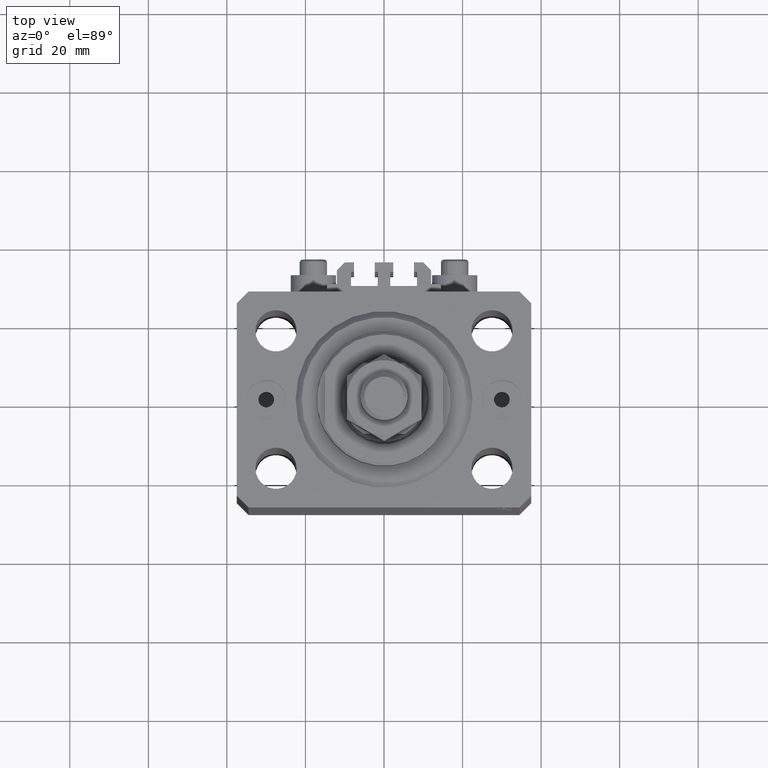
[diagram: clean part render]
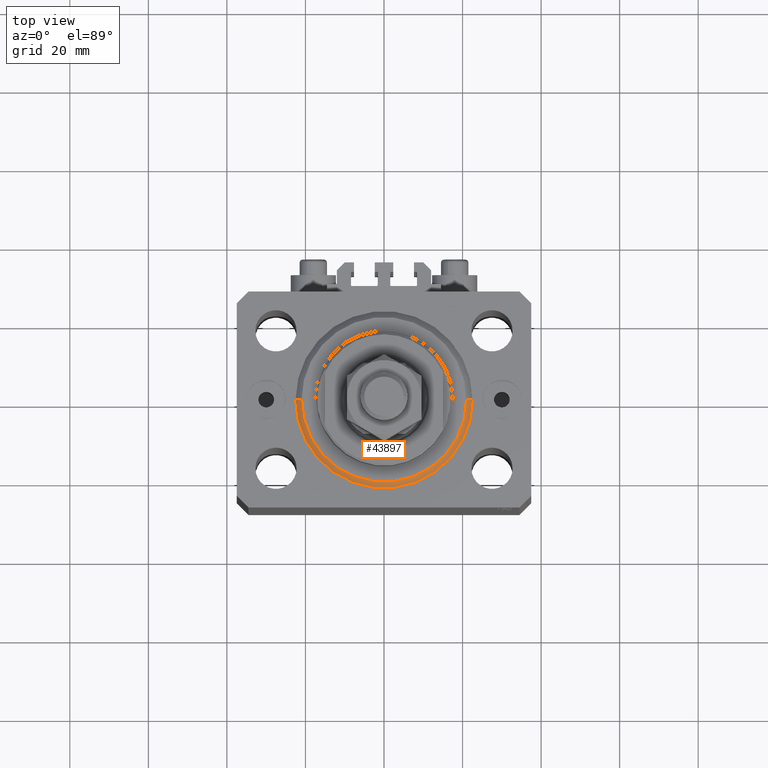
[diagram: same view with one face highlighted and labeled with its STEP entity id]
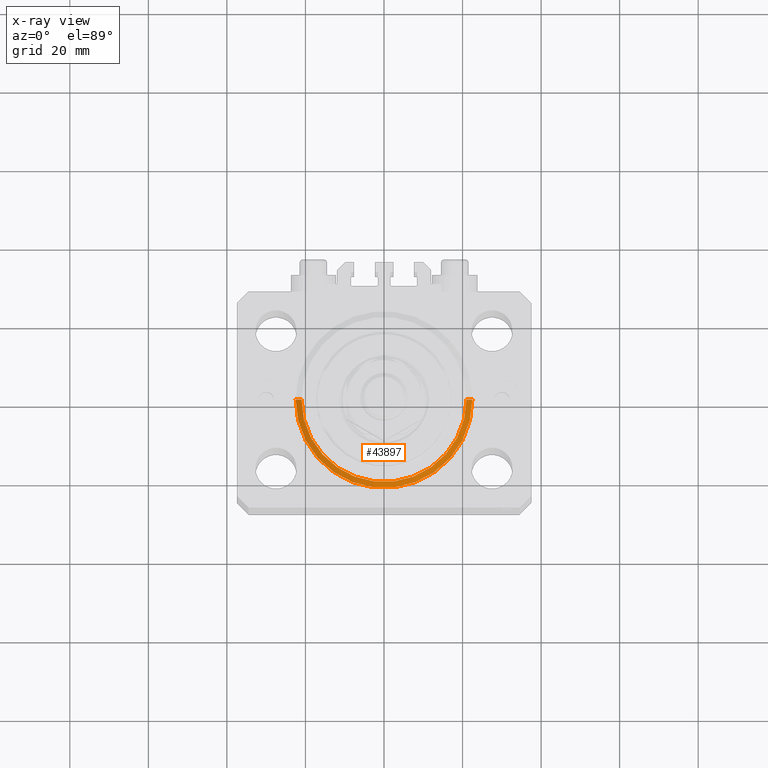
[diagram: x-ray of the same camera — body ghosted, the highlighted face saturated]
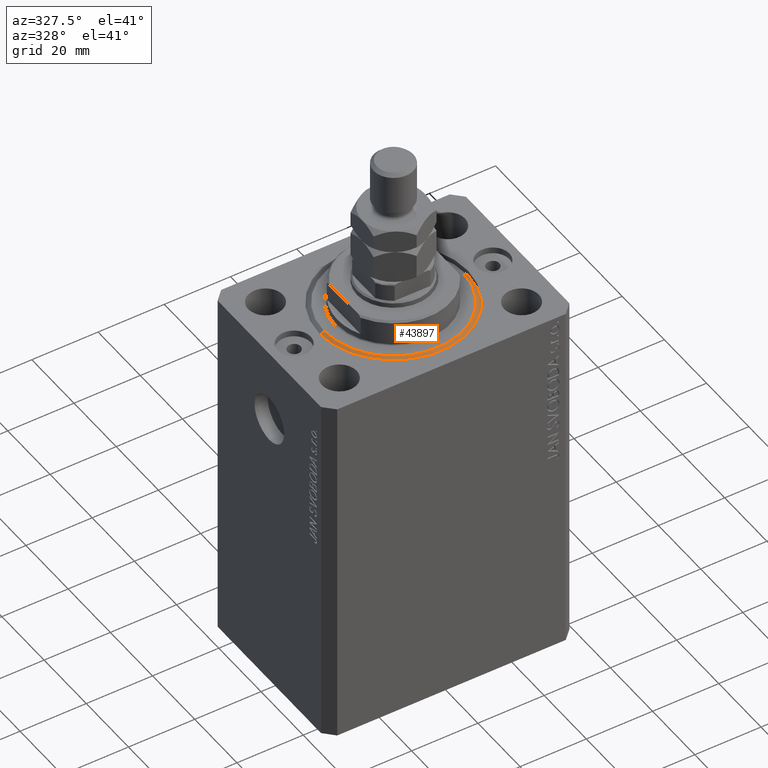
[diagram: same view with one face highlighted and labeled with its STEP entity id]
A machine part, top view. The second image highlights one B-rep face of the part: STEP entity #43897.
The next image is the same camera in x-ray: the body ghosted, the highlighted face saturated — about 0% of this face is hidden behind the body in this view.
A second angle (auxiliary view) of the same face is appended — the face is thin or edge-on in the first view.
In plain terms, the highlighted conical surface has half-angle 45 deg.
Its self-contained STEP definition (entity closure, byte-faithful):
#1937 = DIRECTION ( 'NONE',  ( -0.000000000000000000, -0.000000000000000000, 1.000000000000000000 ) ) ;
#2815 = VERTEX_POINT ( 'NONE', #14571 ) ;
#3433 = CIRCLE ( 'NONE', #30998, 20.99999999999998934 ) ;
#4503 = ORIENTED_EDGE ( 'NONE', *, *, #27206, .F. ) ;
#8793 = CARTESIAN_POINT ( 'NONE',  ( 0.000000000000000000, 0.000000000000000000, 0.000000000000000000 ) ) ;
#9700 = ORIENTED_EDGE ( 'NONE', *, *, #21957, .F. ) ;
#11425 = VERTEX_POINT ( 'NONE', #14311 ) ;
#11773 = ORIENTED_EDGE ( 'NONE', *, *, #43025, .T. ) ;
#14311 = CARTESIAN_POINT ( 'NONE',  ( -20.99999999999998934, 2.663606788145492628E-15, 0.000000000000000000 ) ) ;
#14571 = CARTESIAN_POINT ( 'NONE',  ( -22.50000000000000355, 0.000000000000000000, 1.500000000000001332 ) ) ;
#14725 = LINE ( 'NONE', #30249, #20201 ) ;
#15587 = AXIS2_PLACEMENT_3D ( 'NONE', #35724, #1937, #16280 ) ;
#16280 = DIRECTION ( 'NONE',  ( 1.000000000000000000, 0.000000000000000000, 0.000000000000000000 ) ) ;
#18718 = CIRCLE ( 'NONE', #15587, 22.50000000000000355 ) ;
#18904 = DIRECTION ( 'NONE',  ( -0.7071067811865500152, 8.659560562354963673E-17, 0.7071067811865451302 ) ) ;
#19820 = CONICAL_SURFACE ( 'NONE', #26128, 22.50000000000000355, 0.7853981633974517207 ) ;
#20201 = VECTOR ( 'NONE', #18904, 1000.000000000000114 ) ;
#20873 = DIRECTION ( 'NONE',  ( -0.000000000000000000, -0.000000000000000000, -1.000000000000000000 ) ) ;
#21957 = EDGE_CURVE ( 'NONE', #44079, #11425, #3433, .T. ) ;
#22095 = CARTESIAN_POINT ( 'NONE',  ( 0.000000000000000000, 0.000000000000000000, 1.500000000000001332 ) ) ;
#25796 = FACE_OUTER_BOUND ( 'NONE', #34299, .T. ) ;
#26128 = AXIS2_PLACEMENT_3D ( 'NONE', #22095, #40831, #37381 ) ;
#27206 = EDGE_CURVE ( 'NONE', #2815, #48632, #18718, .T. ) ;
#28648 = EDGE_CURVE ( 'NONE', #11425, #2815, #14725, .T. ) ;
#30249 = CARTESIAN_POINT ( 'NONE',  ( -22.50000000000000355, 2.755455298081545172E-15, 1.500000000000001332 ) ) ;
#30998 = AXIS2_PLACEMENT_3D ( 'NONE', #8793, #20873, #31485 ) ;
#31485 = DIRECTION ( 'NONE',  ( 1.000000000000000000, 0.000000000000000000, 0.000000000000000000 ) ) ;
#33493 = DIRECTION ( 'NONE',  ( 0.7071067811865500152, 0.000000000000000000, 0.7071067811865451302 ) ) ;
#34299 = EDGE_LOOP ( 'NONE', ( #42392, #9700, #11773, #4503 ) ) ;
#34745 = CARTESIAN_POINT ( 'NONE',  ( 22.50000000000000355, 2.755455298081545172E-15, 1.500000000000001332 ) ) ;
#35724 = CARTESIAN_POINT ( 'NONE',  ( 0.000000000000000000, 0.000000000000000000, 1.500000000000001332 ) ) ;
#37381 = DIRECTION ( 'NONE',  ( 1.000000000000000000, 0.000000000000000000, 0.000000000000000000 ) ) ;
#37876 = VECTOR ( 'NONE', #33493, 1000.000000000000114 ) ;
#40831 = DIRECTION ( 'NONE',  ( -0.000000000000000000, -0.000000000000000000, 1.000000000000000000 ) ) ;
#42392 = ORIENTED_EDGE ( 'NONE', *, *, #28648, .F. ) ;
#42771 = CARTESIAN_POINT ( 'NONE',  ( 20.99999999999998934, 0.000000000000000000, 0.000000000000000000 ) ) ;
#43025 = EDGE_CURVE ( 'NONE', #44079, #48632, #45091, .T. ) ;
#43897 = ADVANCED_FACE ( 'NONE', ( #25796 ), #19820, .T. ) ;
#44079 = VERTEX_POINT ( 'NONE', #42771 ) ;
#45091 = LINE ( 'NONE', #45570, #37876 ) ;
#45570 = CARTESIAN_POINT ( 'NONE',  ( 22.50000000000000355, 0.000000000000000000, 1.500000000000001332 ) ) ;
#48632 = VERTEX_POINT ( 'NONE', #34745 ) ;